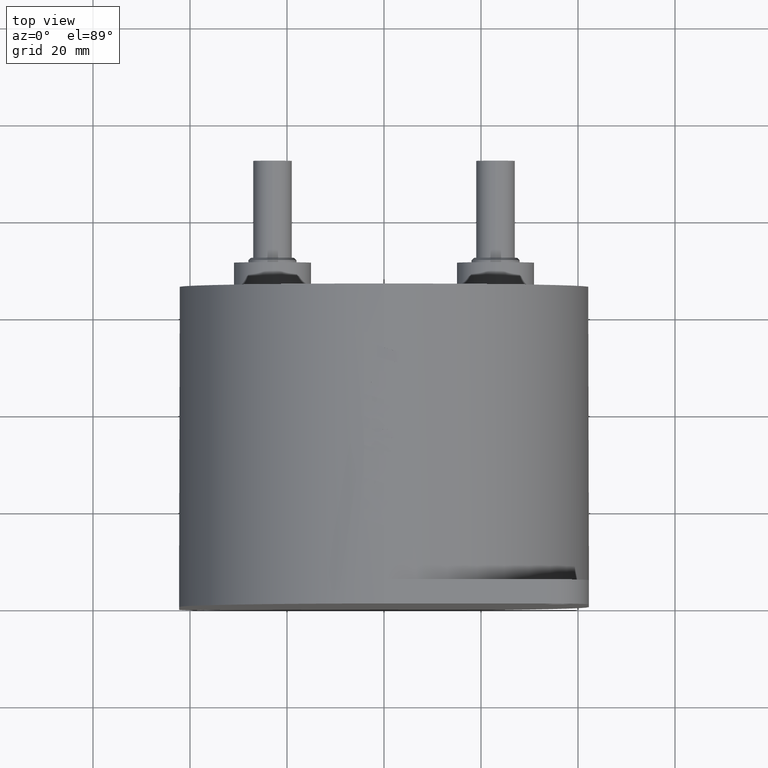
[diagram: clean part render]
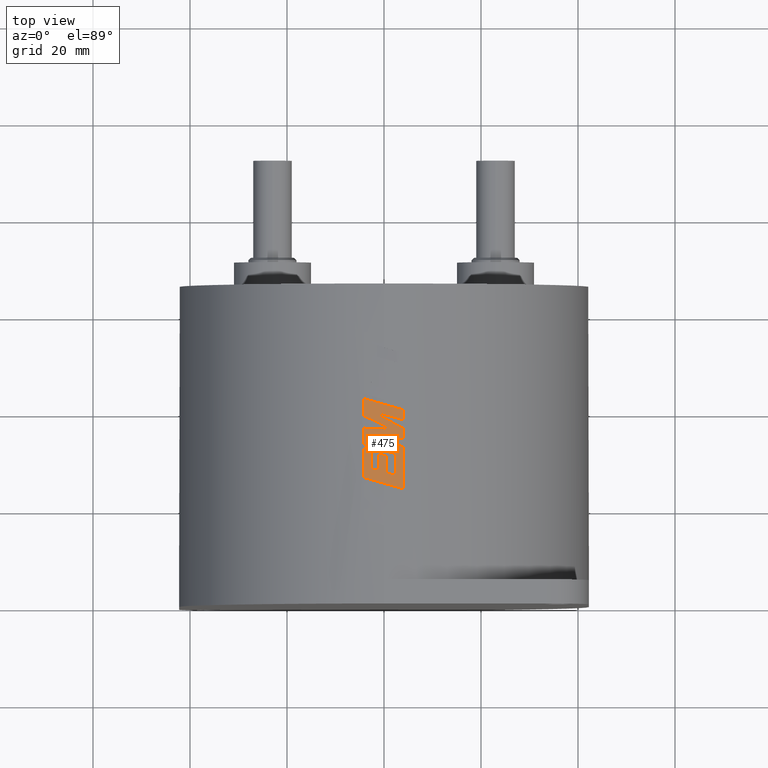
[diagram: same view with one face highlighted and labeled with its STEP entity id]
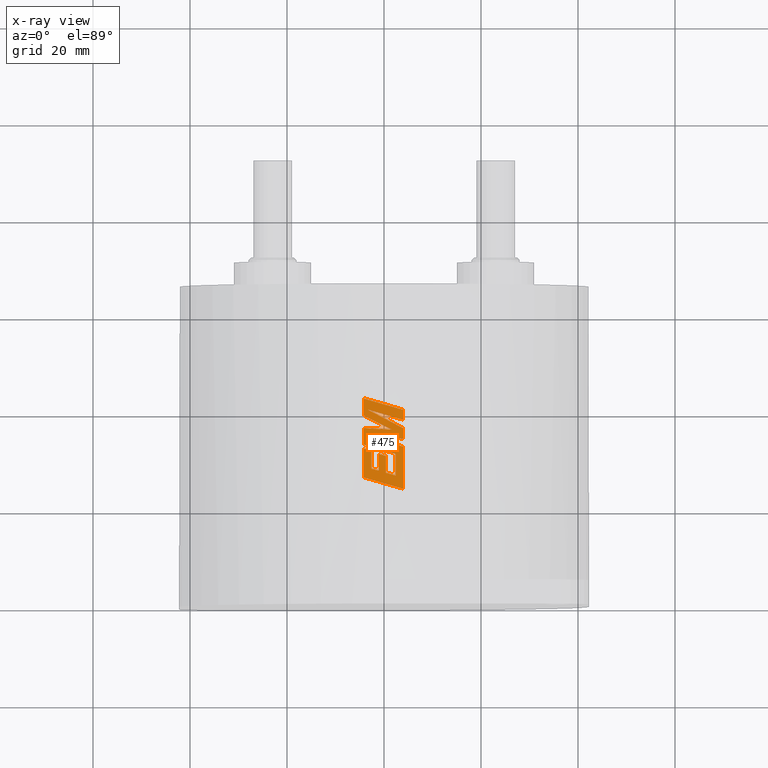
[diagram: x-ray of the same camera — body ghosted, the highlighted face saturated]
A machine part, top view. The second image highlights one B-rep face of the part: STEP entity #475.
The next image is the same camera in x-ray: the body ghosted, the highlighted face saturated — about 0% of this face is hidden behind the body in this view.
In plain terms, the highlighted cylindrical surface (partial cylindrical patch) has radius 42.26 mm, axis along (-0, -1, -0).
Its self-contained STEP definition (entity closure, byte-faithful):
#14 = VERTEX_POINT ( 'NONE', #445 ) ;
#24 = ORIENTED_EDGE ( 'NONE', *, *, #283, .T. ) ;
#86 = DIRECTION ( 'NONE',  ( -0.0000000000000000000, -1.000000000000000000, -0.0000000000000000000 ) ) ;
#96 = ORIENTED_EDGE ( 'NONE', *, *, #3771, .T. ) ;
#172 = VERTEX_POINT ( 'NONE', #2820 ) ;
#174 = ORIENTED_EDGE ( 'NONE', *, *, #3018, .T. ) ;
#177 = CARTESIAN_POINT ( 'NONE',  ( -3.241295123144661600, 34.41117356439610800, 42.13551478176906800 ) ) ;
#206 = CARTESIAN_POINT ( 'NONE',  ( 3.931231477341965900, 23.66161205262390500, 42.07675152707913200 ) ) ;
#220 = LINE ( 'NONE', #1883, #3558 ) ;
#221 = EDGE_LOOP ( 'NONE', ( #2539, #1296, #3793, #1229, #769, #3601, #379, #96, #2981, #4052, #24, #2213, #2467, #3955, #3940, #1136, #926, #894, #1078, #526, #2596, #2284, #174, #1403 ) ) ;
#227 = DIRECTION ( 'NONE',  ( 0.0000000000000000000, 0.0000000000000000000, -1.000000000000000000 ) ) ;
#256 = LINE ( 'NONE', #3913, #354 ) ;
#283 = EDGE_CURVE ( 'NONE', #514, #831, #1591, .T. ) ;
#294 = VECTOR ( 'NONE', #327, 1000.000000000000000 ) ;
#300 = CARTESIAN_POINT ( 'NONE',  ( 3.931231477341965900, 37.89542557754476300, 42.07675152707913200 ) ) ;
#318 = CARTESIAN_POINT ( 'NONE',  ( -4.123021018174913600, 38.72631885409104800, 42.05839152516045200 ) ) ;
#324 = VERTEX_POINT ( 'NONE', #1335 ) ;
#327 = DIRECTION ( 'NONE',  ( 0.0000000000000000000, 1.000000000000000000, 0.0000000000000000000 ) ) ;
#340 = EDGE_CURVE ( 'NONE', #324, #4037, #1026, .T. ) ;
#354 = VECTOR ( 'NONE', #3620, 1000.000000000000000 ) ;
#375 = VERTEX_POINT ( 'NONE', #1423 ) ;
#379 = ORIENTED_EDGE ( 'NONE', *, *, #3977, .T. ) ;
#397 = CARTESIAN_POINT ( 'NONE',  ( 3.931231477341965900, 34.00873045371250900, 42.07675152707913200 ) ) ;
#445 = CARTESIAN_POINT ( 'NONE',  ( -1.093678238883768500, 30.85477997643873500, 42.24584556982843300 ) ) ;
#475 = ADVANCED_FACE ( 'NONE', ( #3392 ), #3249, .T. ) ;
#514 = VERTEX_POINT ( 'NONE', #581 ) ;
#526 = ORIENTED_EDGE ( 'NONE', *, *, #1367, .T. ) ;
#546 = LINE ( 'NONE', #2111, #779 ) ;
#581 = CARTESIAN_POINT ( 'NONE',  ( -1.093678238883749800, 27.39335726721506200, 42.24584556982843300 ) ) ;
#608 = CARTESIAN_POINT ( 'NONE',  ( 0.2272028928789432100, 31.49316676313954800, 42.31544101323152800 ) ) ;
#613 = CARTESIAN_POINT ( 'NONE',  ( 1.632824379772110000, 35.86882455525295700, 42.22844402230352000 ) ) ;
#753 = EDGE_CURVE ( 'NONE', #2290, #375, #3891, .T. ) ;
#755 = CARTESIAN_POINT ( 'NONE',  ( 1.733769291712869500, 26.58727767727829100, 42.22970806915861900 ) ) ;
#769 = ORIENTED_EDGE ( 'NONE', *, *, #3078, .T. ) ;
#779 = VECTOR ( 'NONE', #86, 1000.000000000000000 ) ;
#781 = CARTESIAN_POINT ( 'NONE',  ( -4.123021018174913600, 42.26339970048229600, 42.05839152516045200 ) ) ;
#818 = CARTESIAN_POINT ( 'NONE',  ( 3.931231477341965900, 32.34967025492640900, 42.07675152707913200 ) ) ;
#820 = B_SPLINE_CURVE_WITH_KNOTS ( 'NONE', 3,
 ( #2849, #3176, #1231, #1239 ),
 .UNSPECIFIED., .F., .F.,
 ( 4, 4 ),
 ( 0.0000000000000000000, 1.000000000000000000 ),
 .UNSPECIFIED. ) ;
#831 = VERTEX_POINT ( 'NONE', #2068 ) ;
#834 = CARTESIAN_POINT ( 'NONE',  ( 3.931231477341965900, 66.00000000000000000, 42.07675152707913200 ) ) ;
#847 = EDGE_CURVE ( 'NONE', #2337, #1623, #2451, .T. ) ;
#858 = CARTESIAN_POINT ( 'NONE',  ( -4.123021018174913600, 38.72631885409104800, 42.05839152516045200 ) ) ;
#894 = ORIENTED_EDGE ( 'NONE', *, *, #340, .T. ) ;
#924 = EDGE_CURVE ( 'NONE', #4037, #3374, #2174, .T. ) ;
#926 = ORIENTED_EDGE ( 'NONE', *, *, #3234, .T. ) ;
#934 = EDGE_CURVE ( 'NONE', #1183, #1670, #1938, .T. ) ;
#952 = CARTESIAN_POINT ( 'NONE',  ( -1.093678238883768500, 30.85477997643873500, 42.24584556982843300 ) ) ;
#962 = CARTESIAN_POINT ( 'NONE',  ( -2.592541689297153300, 31.50415229286734200, 42.18040217434225500 ) ) ;
#1010 = B_SPLINE_CURVE_WITH_KNOTS ( 'NONE', 3,
 ( #3745, #2840, #608, #1867 ),
 .UNSPECIFIED., .F., .F.,
 ( 4, 4 ),
 ( 0.0000000000000000000, 1.000000000000000000 ),
 .UNSPECIFIED. ) ;
#1025 = EDGE_CURVE ( 'NONE', #14, #514, #546, .T. ) ;
#1026 = B_SPLINE_CURVE_WITH_KNOTS ( 'NONE', 3,
 ( #818, #1438, #2666, #3648 ),
 .UNSPECIFIED., .F., .F.,
 ( 4, 4 ),
 ( 0.0000000000000000000, 1.000000000000000000 ),
 .UNSPECIFIED. ) ;
#1039 = DIRECTION ( 'NONE',  ( -0.0000000000000000000, -1.000000000000000000, -0.0000000000000000000 ) ) ;
#1063 = CARTESIAN_POINT ( 'NONE',  ( -4.123021018174933200, 66.00000000000000000, 42.05839152516045200 ) ) ;
#1078 = ORIENTED_EDGE ( 'NONE', *, *, #924, .T. ) ;
#1136 = ORIENTED_EDGE ( 'NONE', *, *, #3102, .T. ) ;
#1154 = CARTESIAN_POINT ( 'NONE',  ( 0.3974154472311173200, 30.42894357257234400, 42.25813129993211700 ) ) ;
#1174 = DIRECTION ( 'NONE',  ( 0.0000000000000000000, 1.000000000000000000, 0.0000000000000000000 ) ) ;
#1180 = CARTESIAN_POINT ( 'NONE',  ( 1.254052974140503800, 24.43516826470531100, 42.32688035167424100 ) ) ;
#1183 = VERTEX_POINT ( 'NONE', #3103 ) ;
#1205 = CARTESIAN_POINT ( 'NONE',  ( 3.931231477341965900, 36.15868199010140700, 42.07675152707913200 ) ) ;
#1229 = ORIENTED_EDGE ( 'NONE', *, *, #1534, .T. ) ;
#1231 = CARTESIAN_POINT ( 'NONE',  ( -2.211244857078804100, 36.07558565029084700, 42.24580461939468300 ) ) ;
#1239 = CARTESIAN_POINT ( 'NONE',  ( -4.123021018174933200, 36.17896619780980000, 42.05839152516045200 ) ) ;
#1241 = VERTEX_POINT ( 'NONE', #1154 ) ;
#1267 = CARTESIAN_POINT ( 'NONE',  ( -3.613656192597372900, 31.79481109976019900, 42.10832500586712300 ) ) ;
#1275 = LINE ( 'NONE', #834, #3732 ) ;
#1282 = CARTESIAN_POINT ( 'NONE',  ( -0.5967708389867701900, 30.71283450848327200, 42.25870971783345500 ) ) ;
#1291 = DIRECTION ( 'NONE',  ( -0.0000000000000000000, -1.000000000000000000, -0.0000000000000000000 ) ) ;
#1293 = LINE ( 'NONE', #3279, #2961 ) ;
#1296 = ORIENTED_EDGE ( 'NONE', *, *, #2671, .T. ) ;
#1335 = CARTESIAN_POINT ( 'NONE',  ( 3.931231477341965900, 32.34967025492640900, 42.07675152707913200 ) ) ;
#1359 = VERTEX_POINT ( 'NONE', #3156 ) ;
#1362 = CARTESIAN_POINT ( 'NONE',  ( -1.093678238883749800, 27.39335726721506200, 42.24584556982843300 ) ) ;
#1367 = EDGE_CURVE ( 'NONE', #3374, #3422, #220, .T. ) ;
#1369 = CARTESIAN_POINT ( 'NONE',  ( 0.3974154472311173200, 26.96801128878176400, 42.25813129993211700 ) ) ;
#1403 = ORIENTED_EDGE ( 'NONE', *, *, #847, .T. ) ;
#1423 = CARTESIAN_POINT ( 'NONE',  ( -4.123021018174933200, 31.94014050320662100, 42.05839152516045200 ) ) ;
#1435 = CARTESIAN_POINT ( 'NONE',  ( 1.536332086272287100, 38.58599363037221500, 42.30050701032220000 ) ) ;
#1438 = CARTESIAN_POINT ( 'NONE',  ( 1.547809825059107200, 33.03683802474964900, 42.29943464502854800 ) ) ;
#1444 = EDGE_CURVE ( 'NONE', #1241, #14, #2419, .T. ) ;
#1457 = VERTEX_POINT ( 'NONE', #2604 ) ;
#1467 = B_SPLINE_CURVE_WITH_KNOTS ( 'NONE', 3,
 ( #318, #2517, #1873, #613 ),
 .UNSPECIFIED., .F., .F.,
 ( 4, 4 ),
 ( 0.0000000000000000000, 1.000000000000000000 ),
 .UNSPECIFIED. ) ;
#1514 = CARTESIAN_POINT ( 'NONE',  ( 3.931231477341965900, 66.00000000000000000, 42.07675152707913200 ) ) ;
#1522 = CARTESIAN_POINT ( 'NONE',  ( 3.931231477341965900, 34.00873045371250900, 42.07675152707913200 ) ) ;
#1530 = CARTESIAN_POINT ( 'NONE',  ( 1.536332086272287100, 37.42816457207663900, 42.30050701032220000 ) ) ;
#1534 = EDGE_CURVE ( 'NONE', #1359, #2978, #1293, .T. ) ;
#1591 = B_SPLINE_CURVE_WITH_KNOTS ( 'NONE', 3,
 ( #1362, #2639, #2293, #3864 ),
 .UNSPECIFIED., .F., .F.,
 ( 4, 4 ),
 ( 0.0000000000000000000, 1.000000000000000000 ),
 .UNSPECIFIED. ) ;
#1623 = VERTEX_POINT ( 'NONE', #2937 ) ;
#1645 = CARTESIAN_POINT ( 'NONE',  ( -3.103384173215564300, 31.64948169631377100, 42.14900417034152000 ) ) ;
#1651 = CARTESIAN_POINT ( 'NONE',  ( -2.592541689297153300, 31.50415229286734200, 42.18040217434225500 ) ) ;
#1654 = EDGE_CURVE ( 'NONE', #172, #3579, #2714, .T. ) ;
#1670 = VERTEX_POINT ( 'NONE', #2385 ) ;
#1687 = LINE ( 'NONE', #1826, #3491 ) ;
#1737 = LINE ( 'NONE', #3207, #294 ) ;
#1782 = CARTESIAN_POINT ( 'NONE',  ( -1.447010689812819700, 41.49052191240923500, 42.32072316525871300 ) ) ;
#1797 = EDGE_CURVE ( 'NONE', #3422, #172, #3524, .T. ) ;
#1803 = CARTESIAN_POINT ( 'NONE',  ( 3.931231477341965900, 39.94476633626310000, 42.07675152707913200 ) ) ;
#1807 = DIRECTION ( 'NONE',  ( 0.0000000000000000000, 1.000000000000000000, 0.0000000000000000000 ) ) ;
#1826 = CARTESIAN_POINT ( 'NONE',  ( -2.592541689297172400, 66.00000000000000000, 42.18040217434225500 ) ) ;
#1844 = VECTOR ( 'NONE', #3614, 1000.000000000000000 ) ;
#1867 = CARTESIAN_POINT ( 'NONE',  ( 2.400970911897514400, 30.86748199514132600, 42.19174017127312500 ) ) ;
#1873 = CARTESIAN_POINT ( 'NONE',  ( -0.2866815659967997800, 36.82132265486565400, 42.30266451936265100 ) ) ;
#1883 = CARTESIAN_POINT ( 'NONE',  ( 3.931231477341965900, 66.00000000000000000, 42.07675152707913200 ) ) ;
#1938 = B_SPLINE_CURVE_WITH_KNOTS ( 'NONE', 3,
 ( #3753, #3094, #1180, #206 ),
 .UNSPECIFIED., .F., .F.,
 ( 4, 4 ),
 ( 0.0000000000000000000, 1.000000000000000000 ),
 .UNSPECIFIED. ) ;
#1951 = CARTESIAN_POINT ( 'NONE',  ( 3.931231477341965900, 39.94476633626310000, 42.07675152707913200 ) ) ;
#2024 = VERTEX_POINT ( 'NONE', #2156 ) ;
#2039 = CARTESIAN_POINT ( 'NONE',  ( 1.065666947520904900, 26.77764448303002700, 42.25184674686077100 ) ) ;
#2042 = VECTOR ( 'NONE', #2348, 1000.000000000000000 ) ;
#2068 = CARTESIAN_POINT ( 'NONE',  ( -2.592541689297172400, 27.82983590298700300, 42.18040217434225500 ) ) ;
#2092 = EDGE_CURVE ( 'NONE', #2024, #1359, #820, .T. ) ;
#2093 = LINE ( 'NONE', #3218, #3045 ) ;
#2104 = CARTESIAN_POINT ( 'NONE',  ( -4.123021018174913600, 32.74453629913598700, 42.05839152516045200 ) ) ;
#2111 = CARTESIAN_POINT ( 'NONE',  ( -1.093678238883768500, 66.00000000000000000, 42.24584556982843300 ) ) ;
#2126 = CARTESIAN_POINT ( 'NONE',  ( -3.241295123144661600, 34.41117356439610800, 42.13551478176906800 ) ) ;
#2146 = CARTESIAN_POINT ( 'NONE',  ( 0.0000000000000000000, 66.00000000000000000, 0.0000000000000000000 ) ) ;
#2156 = CARTESIAN_POINT ( 'NONE',  ( 1.632824379772110000, 35.86882455525295700, 42.22844402230352000 ) ) ;
#2174 = B_SPLINE_CURVE_WITH_KNOTS ( 'NONE', 3,
 ( #2126, #3107, #2470, #1522 ),
 .UNSPECIFIED., .F., .F.,
 ( 4, 4 ),
 ( 0.0000000000000000000, 1.000000000000000000 ),
 .UNSPECIFIED. ) ;
#2213 = ORIENTED_EDGE ( 'NONE', *, *, #3203, .T. ) ;
#2284 = ORIENTED_EDGE ( 'NONE', *, *, #1654, .T. ) ;
#2286 = CARTESIAN_POINT ( 'NONE',  ( -4.123021018174933200, 31.94014050320662100, 42.05839152516045200 ) ) ;
#2290 = VERTEX_POINT ( 'NONE', #1651 ) ;
#2293 = CARTESIAN_POINT ( 'NONE',  ( -2.093360263661888900, 27.68434302439635500, 42.21108345260823600 ) ) ;
#2314 = CARTESIAN_POINT ( 'NONE',  ( 2.400970911897514400, 26.39691087152655400, 42.19174017127312500 ) ) ;
#2337 = VERTEX_POINT ( 'NONE', #1951 ) ;
#2348 = DIRECTION ( 'NONE',  ( -0.0000000000000000000, -1.000000000000000000, -0.0000000000000000000 ) ) ;
#2369 = CARTESIAN_POINT ( 'NONE',  ( -3.275775338832632900, 39.96712973602709700, 42.13284818202416200 ) ) ;
#2385 = CARTESIAN_POINT ( 'NONE',  ( 3.931231477341965900, 23.66161205262390500, 42.07675152707913200 ) ) ;
#2419 = B_SPLINE_CURVE_WITH_KNOTS ( 'NONE', 3,
 ( #3839, #3542, #1282, #952 ),
 .UNSPECIFIED., .F., .F.,
 ( 4, 4 ),
 ( 0.0000000000000000000, 1.000000000000000000 ),
 .UNSPECIFIED. ) ;
#2451 = B_SPLINE_CURVE_WITH_KNOTS ( 'NONE', 3,
 ( #1803, #3700, #1782, #781 ),
 .UNSPECIFIED., .F., .F.,
 ( 4, 4 ),
 ( 0.0000000000000000000, 1.000000000000000000 ),
 .UNSPECIFIED. ) ;
#2467 = ORIENTED_EDGE ( 'NONE', *, *, #753, .T. ) ;
#2470 = CARTESIAN_POINT ( 'NONE',  ( 1.547809825059107200, 34.14287815727370700, 42.29943464502854800 ) ) ;
#2517 = CARTESIAN_POINT ( 'NONE',  ( -2.211244857078804100, 37.77382075447835800, 42.24580461939468300 ) ) ;
#2539 = ORIENTED_EDGE ( 'NONE', *, *, #3812, .T. ) ;
#2554 = LINE ( 'NONE', #2673, #1844 ) ;
#2555 = CARTESIAN_POINT ( 'NONE',  ( 0.3974154472311173200, 26.96801128878176400, 42.25813129993211700 ) ) ;
#2596 = ORIENTED_EDGE ( 'NONE', *, *, #1797, .T. ) ;
#2604 = CARTESIAN_POINT ( 'NONE',  ( 3.931231477341965900, 30.91419501124563500, 42.07675152707913200 ) ) ;
#2622 = VERTEX_POINT ( 'NONE', #3091 ) ;
#2631 = B_SPLINE_CURVE_WITH_KNOTS ( 'NONE', 3,
 ( #2314, #755, #2039, #1369 ),
 .UNSPECIFIED., .F., .F.,
 ( 4, 4 ),
 ( 0.0000000000000000000, 1.000000000000000000 ),
 .UNSPECIFIED. ) ;
#2639 = CARTESIAN_POINT ( 'NONE',  ( -1.593634150436046500, 27.53885014580570700, 42.23290250067001500 ) ) ;
#2666 = CARTESIAN_POINT ( 'NONE',  ( -0.8545448485584470300, 33.72400579457287500, 42.31911671627129600 ) ) ;
#2671 = EDGE_CURVE ( 'NONE', #4010, #2024, #1467, .T. ) ;
#2673 = CARTESIAN_POINT ( 'NONE',  ( -4.123021018174933200, 66.00000000000000000, 42.05839152516045200 ) ) ;
#2688 = VECTOR ( 'NONE', #1174, 1000.000000000000000 ) ;
#2714 = B_SPLINE_CURVE_WITH_KNOTS ( 'NONE', 3,
 ( #2369, #3310, #1435, #3646 ),
 .UNSPECIFIED., .F., .F.,
 ( 4, 4 ),
 ( 0.0000000000000000000, 1.000000000000000000 ),
 .UNSPECIFIED. ) ;
#2805 = DIRECTION ( 'NONE',  ( 0.0000000000000000000, 1.000000000000000000, 0.0000000000000000000 ) ) ;
#2820 = CARTESIAN_POINT ( 'NONE',  ( -3.275775338832632900, 39.96712973602709700, 42.13284818202416200 ) ) ;
#2840 = CARTESIAN_POINT ( 'NONE',  ( -1.956123278057456000, 32.11885153113777100, 42.27081441159906900 ) ) ;
#2849 = CARTESIAN_POINT ( 'NONE',  ( 1.632824379772110000, 35.86882455525295700, 42.22844402230352000 ) ) ;
#2937 = CARTESIAN_POINT ( 'NONE',  ( -4.123021018174913600, 42.26339970048229600, 42.05839152516045200 ) ) ;
#2961 = VECTOR ( 'NONE', #1039, 1000.000000000000000 ) ;
#2978 = VERTEX_POINT ( 'NONE', #2104 ) ;
#2981 = ORIENTED_EDGE ( 'NONE', *, *, #1444, .T. ) ;
#3018 = EDGE_CURVE ( 'NONE', #3579, #2337, #1275, .T. ) ;
#3045 = VECTOR ( 'NONE', #1291, 1000.000000000000000 ) ;
#3051 = CARTESIAN_POINT ( 'NONE',  ( -3.275775338832632900, 39.96712973602709700, 42.13284818202416200 ) ) ;
#3072 = CARTESIAN_POINT ( 'NONE',  ( 3.931231477341965900, 36.15868199010140700, 42.07675152707913200 ) ) ;
#3078 = EDGE_CURVE ( 'NONE', #2978, #3112, #1010, .T. ) ;
#3086 = LINE ( 'NONE', #1514, #2688 ) ;
#3091 = CARTESIAN_POINT ( 'NONE',  ( 2.400970911897514400, 26.39691087152655400, 42.19174017127312500 ) ) ;
#3094 = CARTESIAN_POINT ( 'NONE',  ( -1.447010689812819700, 25.20872447678672000, 42.32072316525871300 ) ) ;
#3102 = EDGE_CURVE ( 'NONE', #1670, #1457, #3086, .T. ) ;
#3103 = CARTESIAN_POINT ( 'NONE',  ( -4.123021018174913600, 25.98228068886812600, 42.05839152516045200 ) ) ;
#3107 = CARTESIAN_POINT ( 'NONE',  ( -0.8545448485584470300, 34.27702586083491100, 42.31911671627129600 ) ) ;
#3112 = VERTEX_POINT ( 'NONE', #3450 ) ;
#3156 = CARTESIAN_POINT ( 'NONE',  ( -4.123021018174933200, 36.17896619780980000, 42.05839152516045200 ) ) ;
#3176 = CARTESIAN_POINT ( 'NONE',  ( -0.2866815659967997800, 35.97220510277190200, 42.30266451936265100 ) ) ;
#3203 = EDGE_CURVE ( 'NONE', #831, #2290, #1687, .T. ) ;
#3207 = CARTESIAN_POINT ( 'NONE',  ( 3.931231477341965900, 66.00000000000000000, 42.07675152707913200 ) ) ;
#3218 = CARTESIAN_POINT ( 'NONE',  ( 2.400970911897514400, 66.00000000000000000, 42.19174017127312500 ) ) ;
#3234 = EDGE_CURVE ( 'NONE', #1457, #324, #1737, .T. ) ;
#3249 = CYLINDRICAL_SURFACE ( 'NONE', #3986, 42.26000000000000500 ) ;
#3279 = CARTESIAN_POINT ( 'NONE',  ( -4.123021018174933200, 66.00000000000000000, 42.05839152516045200 ) ) ;
#3310 = CARTESIAN_POINT ( 'NONE',  ( -0.8776830718898809300, 39.27656168319965200, 42.31929680458958400 ) ) ;
#3374 = VERTEX_POINT ( 'NONE', #397 ) ;
#3392 = FACE_OUTER_BOUND ( 'NONE', #221, .T. ) ;
#3422 = VERTEX_POINT ( 'NONE', #1205 ) ;
#3436 = VERTEX_POINT ( 'NONE', #2555 ) ;
#3450 = CARTESIAN_POINT ( 'NONE',  ( 2.400970911897514400, 30.86748199514132600, 42.19174017127312500 ) ) ;
#3491 = VECTOR ( 'NONE', #2805, 1000.000000000000000 ) ;
#3524 = B_SPLINE_CURVE_WITH_KNOTS ( 'NONE', 3,
 ( #3072, #1530, #4026, #3051 ),
 .UNSPECIFIED., .F., .F.,
 ( 4, 4 ),
 ( 0.0000000000000000000, 1.000000000000000000 ),
 .UNSPECIFIED. ) ;
#3542 = CARTESIAN_POINT ( 'NONE',  ( -0.09963646084459805400, 30.57088904052780600, 42.26280581109171000 ) ) ;
#3543 = LINE ( 'NONE', #1063, #2042 ) ;
#3558 = VECTOR ( 'NONE', #3737, 1000.000000000000000 ) ;
#3579 = VERTEX_POINT ( 'NONE', #300 ) ;
#3601 = ORIENTED_EDGE ( 'NONE', *, *, #3909, .T. ) ;
#3614 = DIRECTION ( 'NONE',  ( -0.0000000000000000000, -1.000000000000000000, -0.0000000000000000000 ) ) ;
#3620 = DIRECTION ( 'NONE',  ( 0.0000000000000000000, 1.000000000000000000, 0.0000000000000000000 ) ) ;
#3646 = CARTESIAN_POINT ( 'NONE',  ( 3.931231477341965900, 37.89542557754476300, 42.07675152707913200 ) ) ;
#3648 = CARTESIAN_POINT ( 'NONE',  ( -3.241295123144661600, 34.41117356439610800, 42.13551478176906800 ) ) ;
#3692 = DIRECTION ( 'NONE',  ( -0.0000000000000000000, -1.000000000000000000, -0.0000000000000000000 ) ) ;
#3700 = CARTESIAN_POINT ( 'NONE',  ( 1.254052974140503800, 40.71764412433616100, 42.32688035167424100 ) ) ;
#3732 = VECTOR ( 'NONE', #1807, 1000.000000000000000 ) ;
#3737 = DIRECTION ( 'NONE',  ( 0.0000000000000000000, 1.000000000000000000, 0.0000000000000000000 ) ) ;
#3745 = CARTESIAN_POINT ( 'NONE',  ( -4.123021018174913600, 32.74453629913598700, 42.05839152516045200 ) ) ;
#3753 = CARTESIAN_POINT ( 'NONE',  ( -4.123021018174913600, 25.98228068886812600, 42.05839152516045200 ) ) ;
#3771 = EDGE_CURVE ( 'NONE', #3436, #1241, #256, .T. ) ;
#3793 = ORIENTED_EDGE ( 'NONE', *, *, #2092, .T. ) ;
#3812 = EDGE_CURVE ( 'NONE', #1623, #4010, #3543, .T. ) ;
#3839 = CARTESIAN_POINT ( 'NONE',  ( 0.3974154472311173200, 30.42894357257234400, 42.25813129993211700 ) ) ;
#3864 = CARTESIAN_POINT ( 'NONE',  ( -2.592541689297172400, 27.82983590298700300, 42.18040217434225500 ) ) ;
#3891 = B_SPLINE_CURVE_WITH_KNOTS ( 'NONE', 3,
 ( #962, #1645, #1267, #2286 ),
 .UNSPECIFIED., .F., .F.,
 ( 4, 4 ),
 ( 0.0000000000000000000, 1.000000000000000000 ),
 .UNSPECIFIED. ) ;
#3909 = EDGE_CURVE ( 'NONE', #3112, #2622, #2093, .T. ) ;
#3913 = CARTESIAN_POINT ( 'NONE',  ( 0.3974154472311173200, 66.00000000000000000, 42.25813129993211700 ) ) ;
#3937 = EDGE_CURVE ( 'NONE', #375, #1183, #2554, .T. ) ;
#3940 = ORIENTED_EDGE ( 'NONE', *, *, #934, .T. ) ;
#3955 = ORIENTED_EDGE ( 'NONE', *, *, #3937, .T. ) ;
#3977 = EDGE_CURVE ( 'NONE', #2622, #3436, #2631, .T. ) ;
#3986 = AXIS2_PLACEMENT_3D ( 'NONE', #2146, #3692, #227 ) ;
#4010 = VERTEX_POINT ( 'NONE', #858 ) ;
#4026 = CARTESIAN_POINT ( 'NONE',  ( -0.8776830718898809300, 38.69764715405187200, 42.31929680458958400 ) ) ;
#4037 = VERTEX_POINT ( 'NONE', #177 ) ;
#4052 = ORIENTED_EDGE ( 'NONE', *, *, #1025, .T. ) ;